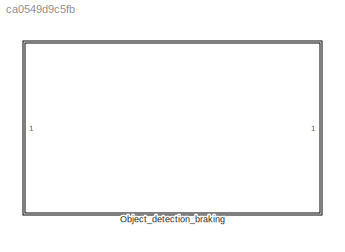
MODEL slx_ca0549d9c5fb
KIND library
CONFIG AbsTol = auto
CONFIG EnableMultiTasking = off
CONFIG FixedStep = auto
CONFIG MaxStep = auto
CONFIG MinStep = auto
CONFIG RelTol = 1e-3
CONFIG SampleTimeConstraint = Unconstrained
CONFIG SolverName = VariableStepAuto
CONFIG StartTime = 0.0
CONFIG StopTime = 10.0
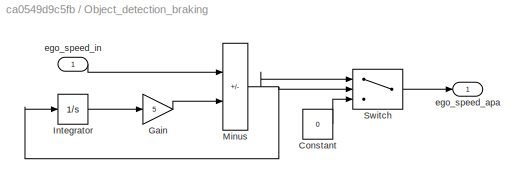
BLOCK [SubSystem] Object_detection_braking
BLOCK [Constant] Object_detection_braking/Constant
  Value = 0
BLOCK [Gain] Object_detection_braking/Gain
  Gain = 5
BLOCK [Integrator] Object_detection_braking/Integrator
BLOCK [Sum] Object_detection_braking/Minus
  IconShape = rectangular
  Inputs = +-
BLOCK [Switch] Object_detection_braking/Switch
  Criteria = u2 > Threshold
  InputSameDT = off
  SaturateOnIntegerOverflow = off
  Threshold = 1
BLOCK [Outport] Object_detection_braking/ego_speed_apa
BLOCK [Inport] Object_detection_braking/ego_speed_in
LINE Object_detection_braking/Constant:1 -> Object_detection_braking/Switch:3
LINE Object_detection_braking/Gain:1 -> Object_detection_braking/Minus:2
LINE Object_detection_braking/Integrator:1 -> Object_detection_braking/Gain:1
NET Object_detection_braking/Minus:1 -> Object_detection_braking/Integrator:1, Object_detection_braking/Switch:1, Object_detection_braking/Switch:2
LINE Object_detection_braking/Switch:1 -> Object_detection_braking/ego_speed_apa:1
LINE Object_detection_braking/ego_speed_in:1 -> Object_detection_braking/Minus:1
note: NET lines group one-source signal fan-out (src -> all destinations, sorted); 1:1 wires keep LINE
